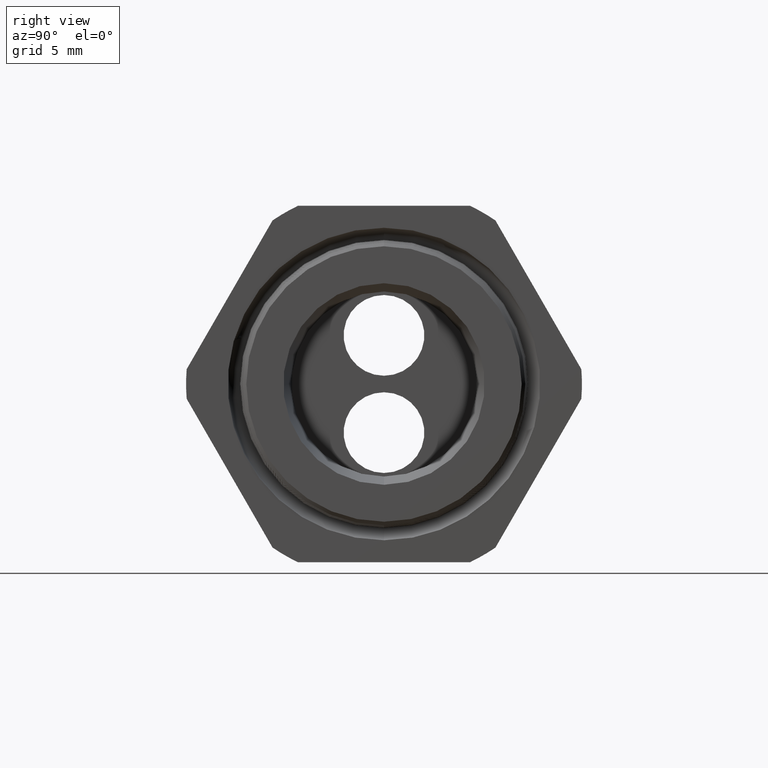
[diagram: clean part render]
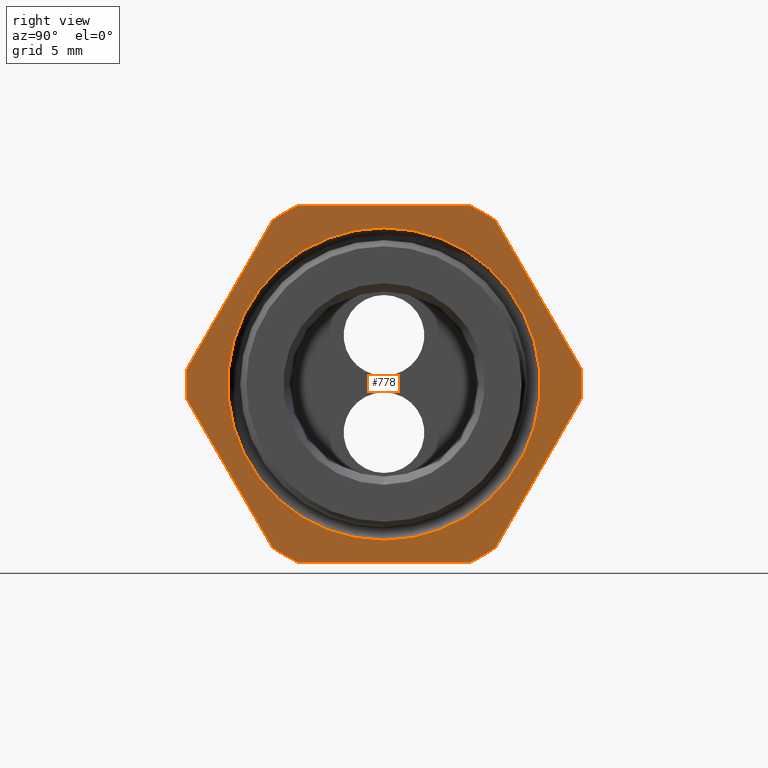
[diagram: same view with one face highlighted and labeled with its STEP entity id]
A machine part, right view. The second image highlights one B-rep face of the part: STEP entity #778.
In plain terms, the highlighted planar face has unit normal (1, 0, 0).
Its self-contained STEP definition (entity closure, byte-faithful):
#109 = VERTEX_POINT ( 'NONE', #1838 ) ;
#202 = EDGE_CURVE ( 'NONE', #109, #203, #2037, .T. ) ;
#203 = VERTEX_POINT ( 'NONE', #2033 ) ;
#753 = EDGE_CURVE ( 'NONE', #835, #809, #3108, .T. ) ;
#754 = ORIENTED_EDGE ( 'NONE', *, *, #202, .F. ) ;
#755 = EDGE_LOOP ( 'NONE', ( #756, #760, #763, #766, #824, #827, #830, #833, #836, #810, #813, #816 ) ) ;
#756 = ORIENTED_EDGE ( 'NONE', *, *, #757, .T. ) ;
#757 = EDGE_CURVE ( 'NONE', #758, #759, #3104, .T. ) ;
#758 = VERTEX_POINT ( 'NONE', #3100 ) ;
#759 = VERTEX_POINT ( 'NONE', #3099 ) ;
#760 = ORIENTED_EDGE ( 'NONE', *, *, #761, .T. ) ;
#761 = EDGE_CURVE ( 'NONE', #759, #762, #3097, .T. ) ;
#762 = VERTEX_POINT ( 'NONE', #3098 ) ;
#763 = ORIENTED_EDGE ( 'NONE', *, *, #764, .T. ) ;
#764 = EDGE_CURVE ( 'NONE', #762, #765, #3158, .T. ) ;
#765 = VERTEX_POINT ( 'NONE', #3154 ) ;
#766 = ORIENTED_EDGE ( 'NONE', *, *, #767, .T. ) ;
#767 = EDGE_CURVE ( 'NONE', #765, #823, #3152, .T. ) ;
#778 = ADVANCED_FACE ( 'NONE', ( #3133, #3186 ), #3185, .T. ) ;
#779 = EDGE_LOOP ( 'NONE', ( #780, #754 ) ) ;
#780 = ORIENTED_EDGE ( 'NONE', *, *, #1644, .F. ) ;
#809 = VERTEX_POINT ( 'NONE', #3238 ) ;
#810 = ORIENTED_EDGE ( 'NONE', *, *, #811, .T. ) ;
#811 = EDGE_CURVE ( 'NONE', #809, #812, #3237, .T. ) ;
#812 = VERTEX_POINT ( 'NONE', #3232 ) ;
#813 = ORIENTED_EDGE ( 'NONE', *, *, #814, .T. ) ;
#814 = EDGE_CURVE ( 'NONE', #812, #815, #3231, .T. ) ;
#815 = VERTEX_POINT ( 'NONE', #3227 ) ;
#816 = ORIENTED_EDGE ( 'NONE', *, *, #817, .T. ) ;
#817 = EDGE_CURVE ( 'NONE', #815, #758, #3225, .T. ) ;
#823 = VERTEX_POINT ( 'NONE', #3275 ) ;
#824 = ORIENTED_EDGE ( 'NONE', *, *, #825, .T. ) ;
#825 = EDGE_CURVE ( 'NONE', #823, #826, #3274, .T. ) ;
#826 = VERTEX_POINT ( 'NONE', #3270 ) ;
#827 = ORIENTED_EDGE ( 'NONE', *, *, #828, .T. ) ;
#828 = EDGE_CURVE ( 'NONE', #826, #829, #3269, .T. ) ;
#829 = VERTEX_POINT ( 'NONE', #3264 ) ;
#830 = ORIENTED_EDGE ( 'NONE', *, *, #831, .T. ) ;
#831 = EDGE_CURVE ( 'NONE', #829, #832, #3263, .T. ) ;
#832 = VERTEX_POINT ( 'NONE', #3259 ) ;
#833 = ORIENTED_EDGE ( 'NONE', *, *, #834, .T. ) ;
#834 = EDGE_CURVE ( 'NONE', #832, #835, #3257, .T. ) ;
#835 = VERTEX_POINT ( 'NONE', #3315 ) ;
#836 = ORIENTED_EDGE ( 'NONE', *, *, #753, .T. ) ;
#1644 = EDGE_CURVE ( 'NONE', #203, #109, #4512, .T. ) ;
#1838 = CARTESIAN_POINT ( 'NONE',  ( -0.3100000000000000000, 5.687810019342193600E-017, 0.4644449341069007400 ) ) ;
#2033 = CARTESIAN_POINT ( 'NONE',  ( -0.3100000000000000000, 0.0000000000000000000, -0.4644449341069007400 ) ) ;
#2034 = DIRECTION ( 'NONE',  ( 0.0000000000000000000, 0.0000000000000000000, -1.000000000000000000 ) ) ;
#2035 = DIRECTION ( 'NONE',  ( 1.000000000000000000, 0.0000000000000000000, 0.0000000000000000000 ) ) ;
#2036 = AXIS2_PLACEMENT_3D ( 'NONE', #2041, #2035, #2034 ) ;
#2037 = CIRCLE ( 'NONE', #2036, 0.4644449341069007400 ) ;
#2041 = CARTESIAN_POINT ( 'NONE',  ( -0.3100000000000000000, 0.0000000000000000000, 0.0000000000000000000 ) ) ;
#3093 = DIRECTION ( 'NONE',  ( 0.0000000000000000000, 0.0000000000000000000, -1.000000000000000000 ) ) ;
#3094 = DIRECTION ( 'NONE',  ( 1.000000000000000000, 0.0000000000000000000, 0.0000000000000000000 ) ) ;
#3095 = CARTESIAN_POINT ( 'NONE',  ( -0.3100000000000000000, 0.0000000000000000000, 0.0000000000000000000 ) ) ;
#3096 = AXIS2_PLACEMENT_3D ( 'NONE', #3095, #3094, #3093 ) ;
#3097 = CIRCLE ( 'NONE', #3096, 0.5883000000000000500 ) ;
#3098 = CARTESIAN_POINT ( 'NONE',  ( -0.3100000000000000000, 0.5866618723924791300, 0.04387183015273722600 ) ) ;
#3099 = CARTESIAN_POINT ( 'NONE',  ( -0.3100000000000000000, 0.5866618723924792400, -0.04387183015273702500 ) ) ;
#3100 = CARTESIAN_POINT ( 'NONE',  ( -0.3100000000000000000, 0.3313250556190259800, -0.4861281698472629300 ) ) ;
#3101 = DIRECTION ( 'NONE',  ( 0.0000000000000000000, 0.5000000000000001100, 0.8660254037844386000 ) ) ;
#3102 = VECTOR ( 'NONE', #3101, 39.37007874015748100 ) ;
#3103 = CARTESIAN_POINT ( 'NONE',  ( -0.3100000000000000000, 0.7239934640057527100, 0.1939934640057524600 ) ) ;
#3104 = LINE ( 'NONE', #3103, #3102 ) ;
#3105 = DIRECTION ( 'NONE',  ( 0.0000000000000000000, 0.5000000000000002200, -0.8660254037844386000 ) ) ;
#3106 = VECTOR ( 'NONE', #3105, 39.37007874015747400 ) ;
#3107 = CARTESIAN_POINT ( 'NONE',  ( -0.3100000000000000000, -0.1939934640057525700, -0.7239934640057528200 ) ) ;
#3108 = LINE ( 'NONE', #3107, #3106 ) ;
#3133 = FACE_BOUND ( 'NONE', #779, .T. ) ;
#3148 = DIRECTION ( 'NONE',  ( 0.0000000000000000000, 0.0000000000000000000, -1.000000000000000000 ) ) ;
#3149 = DIRECTION ( 'NONE',  ( 1.000000000000000000, 0.0000000000000000000, 0.0000000000000000000 ) ) ;
#3150 = CARTESIAN_POINT ( 'NONE',  ( -0.3100000000000000000, 0.0000000000000000000, 0.0000000000000000000 ) ) ;
#3151 = AXIS2_PLACEMENT_3D ( 'NONE', #3150, #3149, #3148 ) ;
#3152 = CIRCLE ( 'NONE', #3151, 0.5882999999999999300 ) ;
#3154 = CARTESIAN_POINT ( 'NONE',  ( -0.3100000000000000000, 0.3313250556190259800, 0.4861281698472629800 ) ) ;
#3155 = DIRECTION ( 'NONE',  ( 0.0000000000000000000, -0.5000000000000002200, 0.8660254037844384900 ) ) ;
#3156 = VECTOR ( 'NONE', #3155, 39.37007874015748900 ) ;
#3157 = CARTESIAN_POINT ( 'NONE',  ( -0.3100000000000000000, 0.7239934640057528200, -0.1939934640057524600 ) ) ;
#3158 = LINE ( 'NONE', #3157, #3156 ) ;
#3181 = DIRECTION ( 'NONE',  ( 0.0000000000000000000, 0.0000000000000000000, -1.000000000000000000 ) ) ;
#3182 = DIRECTION ( 'NONE',  ( 1.000000000000000000, 0.0000000000000000000, 0.0000000000000000000 ) ) ;
#3183 = CARTESIAN_POINT ( 'NONE',  ( -0.3100000000000000000, 1.060000000000000100, 0.0000000000000000000 ) ) ;
#3184 = AXIS2_PLACEMENT_3D ( 'NONE', #3183, #3182, #3181 ) ;
#3185 = PLANE ( 'NONE',  #3184 ) ;
#3186 = FACE_OUTER_BOUND ( 'NONE', #755, .T. ) ;
#3221 = DIRECTION ( 'NONE',  ( 0.0000000000000000000, 0.0000000000000000000, -1.000000000000000000 ) ) ;
#3222 = DIRECTION ( 'NONE',  ( 1.000000000000000000, 0.0000000000000000000, 0.0000000000000000000 ) ) ;
#3223 = CARTESIAN_POINT ( 'NONE',  ( -0.3100000000000000000, 0.0000000000000000000, 0.0000000000000000000 ) ) ;
#3224 = AXIS2_PLACEMENT_3D ( 'NONE', #3223, #3222, #3221 ) ;
#3225 = CIRCLE ( 'NONE', #3224, 0.5882999999999999300 ) ;
#3227 = CARTESIAN_POINT ( 'NONE',  ( -0.3100000000000000000, 0.2553368167734532700, -0.5299999999999999200 ) ) ;
#3228 = DIRECTION ( 'NONE',  ( 0.0000000000000000000, 1.000000000000000000, 0.0000000000000000000 ) ) ;
#3229 = VECTOR ( 'NONE', #3228, 39.37007874015748100 ) ;
#3230 = CARTESIAN_POINT ( 'NONE',  ( -0.3100000000000000000, 1.060000000000000100, -0.5300000000000000300 ) ) ;
#3231 = LINE ( 'NONE', #3230, #3229 ) ;
#3232 = CARTESIAN_POINT ( 'NONE',  ( -0.3100000000000000000, -0.2553368167734532700, -0.5300000000000000300 ) ) ;
#3233 = DIRECTION ( 'NONE',  ( 0.0000000000000000000, 0.0000000000000000000, -1.000000000000000000 ) ) ;
#3234 = DIRECTION ( 'NONE',  ( 1.000000000000000000, 0.0000000000000000000, 0.0000000000000000000 ) ) ;
#3235 = CARTESIAN_POINT ( 'NONE',  ( -0.3100000000000000000, 0.0000000000000000000, 0.0000000000000000000 ) ) ;
#3236 = AXIS2_PLACEMENT_3D ( 'NONE', #3235, #3234, #3233 ) ;
#3237 = CIRCLE ( 'NONE', #3236, 0.5882999999999999300 ) ;
#3238 = CARTESIAN_POINT ( 'NONE',  ( -0.3100000000000000000, -0.3313250556190254200, -0.4861281698472633100 ) ) ;
#3253 = DIRECTION ( 'NONE',  ( 0.0000000000000000000, 0.0000000000000000000, -1.000000000000000000 ) ) ;
#3254 = DIRECTION ( 'NONE',  ( 1.000000000000000000, 0.0000000000000000000, 0.0000000000000000000 ) ) ;
#3255 = CARTESIAN_POINT ( 'NONE',  ( -0.3100000000000000000, 0.0000000000000000000, 0.0000000000000000000 ) ) ;
#3256 = AXIS2_PLACEMENT_3D ( 'NONE', #3255, #3254, #3253 ) ;
#3257 = CIRCLE ( 'NONE', #3256, 0.5883000000000000500 ) ;
#3259 = CARTESIAN_POINT ( 'NONE',  ( -0.3100000000000000000, -0.5866618723924792400, 0.04387183015273651100 ) ) ;
#3260 = DIRECTION ( 'NONE',  ( 0.0000000000000000000, -0.4999999999999996100, -0.8660254037844388200 ) ) ;
#3261 = VECTOR ( 'NONE', #3260, 39.37007874015748100 ) ;
#3262 = CARTESIAN_POINT ( 'NONE',  ( -0.3100000000000000000, -0.1939934640057528500, 0.7239934640057519300 ) ) ;
#3263 = LINE ( 'NONE', #3262, #3261 ) ;
#3264 = CARTESIAN_POINT ( 'NONE',  ( -0.3100000000000000000, -0.3313250556190260900, 0.4861281698472629800 ) ) ;
#3265 = DIRECTION ( 'NONE',  ( 0.0000000000000000000, 0.0000000000000000000, -1.000000000000000000 ) ) ;
#3266 = DIRECTION ( 'NONE',  ( 1.000000000000000000, 0.0000000000000000000, 0.0000000000000000000 ) ) ;
#3267 = CARTESIAN_POINT ( 'NONE',  ( -0.3100000000000000000, 0.0000000000000000000, 0.0000000000000000000 ) ) ;
#3268 = AXIS2_PLACEMENT_3D ( 'NONE', #3267, #3266, #3265 ) ;
#3269 = CIRCLE ( 'NONE', #3268, 0.5882999999999999300 ) ;
#3270 = CARTESIAN_POINT ( 'NONE',  ( -0.3100000000000000000, -0.2553368167734533200, 0.5299999999999999200 ) ) ;
#3271 = DIRECTION ( 'NONE',  ( 0.0000000000000000000, -1.000000000000000000, 0.0000000000000000000 ) ) ;
#3272 = VECTOR ( 'NONE', #3271, 39.37007874015748100 ) ;
#3273 = CARTESIAN_POINT ( 'NONE',  ( -0.3100000000000000000, 1.060000000000000100, 0.5300000000000001400 ) ) ;
#3274 = LINE ( 'NONE', #3273, #3272 ) ;
#3275 = CARTESIAN_POINT ( 'NONE',  ( -0.3100000000000000000, 0.2553368167734530500, 0.5300000000000001400 ) ) ;
#3315 = CARTESIAN_POINT ( 'NONE',  ( -0.3100000000000000000, -0.5866618723924791300, -0.04387183015273687200 ) ) ;
#4508 = DIRECTION ( 'NONE',  ( 0.0000000000000000000, 0.0000000000000000000, -1.000000000000000000 ) ) ;
#4509 = DIRECTION ( 'NONE',  ( 1.000000000000000000, 0.0000000000000000000, 0.0000000000000000000 ) ) ;
#4510 = CARTESIAN_POINT ( 'NONE',  ( -0.3100000000000000000, 0.0000000000000000000, 0.0000000000000000000 ) ) ;
#4511 = AXIS2_PLACEMENT_3D ( 'NONE', #4510, #4509, #4508 ) ;
#4512 = CIRCLE ( 'NONE', #4511, 0.4644449341069007400 ) ;